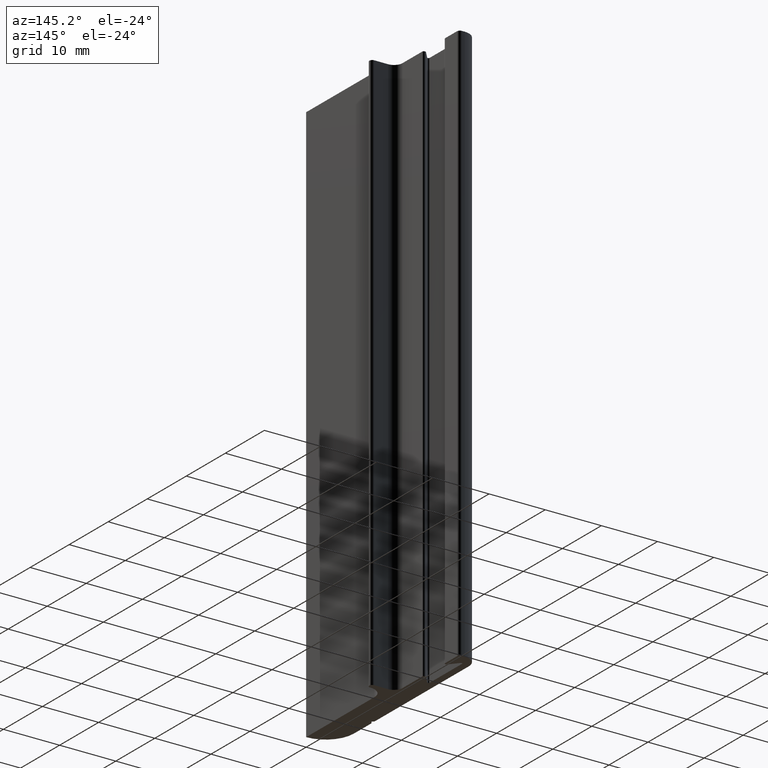
[diagram: clean part render]
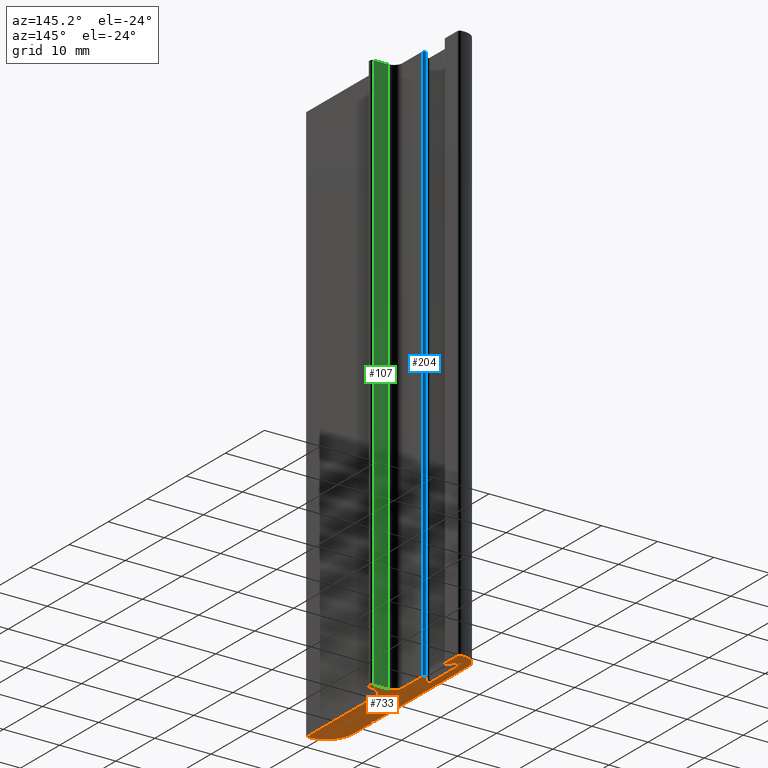
[diagram: same view with three faces highlighted in distinct colors, each labeled with its STEP entity id]
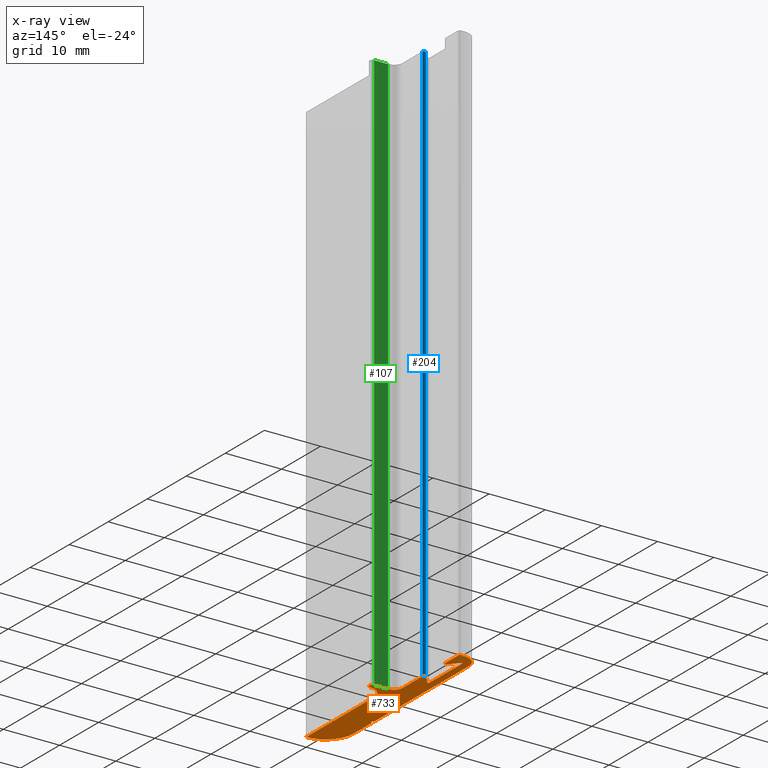
[diagram: x-ray of the same camera — body ghosted, the three highlighted faces saturated]
A machine part, auxiliary view with three faces highlighted in distinct colors.
The next image is the same camera in x-ray (body ghosted, the three faces saturated) — at least one of them is partly hidden behind the body in this view.
Their STEP definitions:

[orange] entity #733 — the highlighted planar face has unit normal (0, 0, 1).
#7=CARTESIAN_POINT('',(0.0,17.499999999998863,0.0));
#8=VERTEX_POINT('',#7);
#9=CARTESIAN_POINT('',(2.500000000000000,20.0,0.0));
#10=VERTEX_POINT('',#9);
#11=CARTESIAN_POINT('',(2.500000000000000,17.499999999998863,0.0));
#12=DIRECTION('',(0.0,0.0,-1.0));
#13=DIRECTION('',(1.0,0.0,0.0));
#14=AXIS2_PLACEMENT_3D('',#11,#12,#13);
#15=CIRCLE('',#14,2.500000000000000);
#16=EDGE_CURVE('',#8,#10,#15,.T.);
#49=CARTESIAN_POINT('',(2.500000000000000,20.999999999998863,0.0));
#50=VERTEX_POINT('',#49);
#51=CARTESIAN_POINT('',(2.500000000000000,20.500000000000000,0.0));
#52=DIRECTION('',(0.0,0.0,1.0));
#53=DIRECTION('',(1.0,0.0,0.0));
#54=AXIS2_PLACEMENT_3D('',#51,#52,#53);
#55=CIRCLE('',#54,0.500000000000012);
#56=EDGE_CURVE('',#10,#50,#55,.T.);
#82=CARTESIAN_POINT('',(0.0,20.999999999998863,0.0));
#83=VERTEX_POINT('',#82);
#84=CARTESIAN_POINT('',(2.500000000000000,20.999999999998863,0.0));
#85=DIRECTION('',(-1.0,0.0,0.0));
#86=VECTOR('',#85,2.500000000000000);
#87=LINE('',#84,#86);
#88=EDGE_CURVE('',#50,#83,#87,.T.);
#113=CARTESIAN_POINT('',(-1.500000000000000,22.499999999998863,0.0));
#114=VERTEX_POINT('',#113);
#115=CARTESIAN_POINT('',(0.0,22.499999999998863,0.0));
#116=DIRECTION('',(0.0,0.0,-1.0));
#117=DIRECTION('',(1.0,0.0,0.0));
#118=AXIS2_PLACEMENT_3D('',#115,#116,#117);
#119=CIRCLE('',#118,1.500000000000000);
#120=EDGE_CURVE('',#83,#114,#119,.T.);
#146=CARTESIAN_POINT('',(-1.500000000000000,27.570751159263864,0.0));
#147=VERTEX_POINT('',#146);
#148=CARTESIAN_POINT('',(-1.500000000000000,22.499999999998863,0.0));
#149=DIRECTION('',(0.0,1.0,0.0));
#150=VECTOR('',#149,5.070751159265001);
#151=LINE('',#148,#150);
#152=EDGE_CURVE('',#114,#147,#151,.T.);
#177=CARTESIAN_POINT('',(-2.029812803122354,27.763587249332886,0.0));
#178=VERTEX_POINT('',#177);
#179=CARTESIAN_POINT('',(-1.799999700000001,27.570751159263864,0.0));
#180=DIRECTION('',(0.0,0.0,1.0));
#181=DIRECTION('',(1.0,0.0,0.0));
#182=AXIS2_PLACEMENT_3D('',#179,#180,#181);
#183=CIRCLE('',#182,0.299999700000000);
#184=EDGE_CURVE('',#147,#178,#183,.T.);
#210=CARTESIAN_POINT('',(-3.320530720561976,26.225369534198308,0.0));
#211=VERTEX_POINT('',#210);
#212=CARTESIAN_POINT('',(-2.029812803122354,27.763587249332886,0.0));
#213=DIRECTION('',(-0.642787609686693,-0.766044443118849,0.0));
#214=VECTOR('',#213,2.008000617916169);
#215=LINE('',#212,#214);
#216=EDGE_CURVE('',#178,#211,#215,.T.);
#241=CARTESIAN_POINT('',(-3.673739255976955,26.353926927577959,0.0));
#242=VERTEX_POINT('',#241);
#243=CARTESIAN_POINT('',(-3.473739455976954,26.353926927577959,0.0));
#244=DIRECTION('',(0.0,0.0,-1.0));
#245=DIRECTION('',(1.0,0.0,0.0));
#246=AXIS2_PLACEMENT_3D('',#243,#244,#245);
#247=CIRCLE('',#246,0.199999800000000);
#248=EDGE_CURVE('',#211,#242,#247,.T.);
#274=CARTESIAN_POINT('',(-3.673739255976955,34.646086072419848,0.0));
#275=VERTEX_POINT('',#274);
#276=CARTESIAN_POINT('',(-3.673739255976955,26.353926927577959,0.0));
#277=DIRECTION('',(0.0,1.0,0.0));
#278=VECTOR('',#277,8.292159144841889);
#279=LINE('',#276,#278);
#280=EDGE_CURVE('',#242,#275,#279,.T.);
#305=CARTESIAN_POINT('',(-3.320530720562090,34.774643465799954,0.0));
#306=VERTEX_POINT('',#305);
#307=CARTESIAN_POINT('',(-3.473739455976954,34.646086072419848,0.0));
#308=DIRECTION('',(0.0,0.0,-1.0));
#309=DIRECTION('',(1.0,0.0,0.0));
#310=AXIS2_PLACEMENT_3D('',#307,#308,#309);
#311=CIRCLE('',#310,0.199999800000000);
#312=EDGE_CURVE('',#275,#306,#311,.T.);
#338=CARTESIAN_POINT('',(-2.029812803122468,33.236425750665376,0.0));
#339=VERTEX_POINT('',#338);
#340=CARTESIAN_POINT('',(-3.320530720562090,34.774643465799954,0.0));
#341=DIRECTION('',(0.642787609686414,-0.766044443119083,0.0));
#342=VECTOR('',#341,2.008000617917039);
#343=LINE('',#340,#342);
#344=EDGE_CURVE('',#306,#339,#343,.T.);
#369=CARTESIAN_POINT('',(-1.500000000000000,33.429261840734853,0.0));
#370=VERTEX_POINT('',#369);
#371=CARTESIAN_POINT('',(-1.799999700000001,33.429261840734853,0.0));
#372=DIRECTION('',(0.0,0.0,1.0));
#373=DIRECTION('',(1.0,0.0,0.0));
#374=AXIS2_PLACEMENT_3D('',#371,#372,#373);
#375=CIRCLE('',#374,0.299999700000000);
#376=EDGE_CURVE('',#339,#370,#375,.T.);
#402=CARTESIAN_POINT('',(-1.500000000000000,36.500000499999032,0.0));
#403=VERTEX_POINT('',#402);
#404=CARTESIAN_POINT('',(-1.500000000000000,33.429261840734853,0.0));
#405=DIRECTION('',(0.0,1.0,0.0));
#406=VECTOR('',#405,3.070738659264180);
#407=LINE('',#404,#406);
#408=EDGE_CURVE('',#370,#403,#407,.T.);
#433=CARTESIAN_POINT('',(-1.999999500000001,36.999999999998863,0.0));
#434=VERTEX_POINT('',#433);
#435=CARTESIAN_POINT('',(-1.999999500000001,36.500000499999032,0.0));
#436=DIRECTION('',(0.0,0.0,1.0));
#437=DIRECTION('',(1.0,0.0,0.0));
#438=AXIS2_PLACEMENT_3D('',#435,#436,#437);
#439=CIRCLE('',#438,0.499999500000000);
#440=EDGE_CURVE('',#403,#434,#439,.T.);
#466=CARTESIAN_POINT('',(-2.499998999999946,36.999999999999091,0.0));
#467=VERTEX_POINT('',#466);
#468=CARTESIAN_POINT('',(-1.999999500000001,36.999999999998863,0.0));
#469=DIRECTION('',(-1.0,0.0,0.0));
#470=VECTOR('',#469,0.499999499999944);
#471=LINE('',#468,#470);
#472=EDGE_CURVE('',#434,#467,#471,.T.);
#497=CARTESIAN_POINT('',(-4.999996499999952,34.500002499999027,0.0));
#498=VERTEX_POINT('',#497);
#499=CARTESIAN_POINT('',(-2.499998999999946,34.500002499999027,0.0));
#500=DIRECTION('',(0.0,0.0,1.0));
#501=DIRECTION('',(1.0,0.0,0.0));
#502=AXIS2_PLACEMENT_3D('',#499,#500,#501);
#503=CIRCLE('',#502,2.499997500000000);
#504=EDGE_CURVE('',#467,#498,#503,.T.);
#530=CARTESIAN_POINT('',(-4.999996499999952,10.353553390592879,0.0));
#531=VERTEX_POINT('',#530);
#532=CARTESIAN_POINT('',(-4.999996499999952,34.500002499999027,0.0));
#533=DIRECTION('',(0.0,-1.0,0.0));
#534=VECTOR('',#533,24.146449109406149);
#535=LINE('',#532,#534);
#536=EDGE_CURVE('',#498,#531,#535,.T.);
#561=CARTESIAN_POINT('',(-4.646443109406789,9.999999999998863,0.0));
#562=VERTEX_POINT('',#561);
#563=CARTESIAN_POINT('',(-4.999996499999952,10.353553390592879,0.0));
#564=DIRECTION('',(0.707106781185695,-0.707106781187400,0.0));
#565=VECTOR('',#564,0.500000000000446);
#566=LINE('',#563,#565);
#567=EDGE_CURVE('',#531,#562,#566,.T.);
#592=CARTESIAN_POINT('',(-4.999996499999952,9.558156932469046,0.0));
#593=VERTEX_POINT('',#592);
#594=CARTESIAN_POINT('',(-4.646443109406789,9.999999999998863,0.0));
#595=DIRECTION('',(-0.624780100167035,-0.780800759755823,0.0));
#596=VECTOR('',#595,0.565884525609315);
#597=LINE('',#594,#596);
#598=EDGE_CURVE('',#562,#593,#597,.T.);
#623=CARTESIAN_POINT('',(-4.999996499999952,4.999999999998863,0.0));
#624=VERTEX_POINT('',#623);
#625=CARTESIAN_POINT('',(-4.999996499999952,9.558156932469046,0.0));
#626=DIRECTION('',(0.0,-1.0,0.0));
#627=VECTOR('',#626,4.558156932470183);
#628=LINE('',#625,#627);
#629=EDGE_CURVE('',#593,#624,#628,.T.);
#654=CARTESIAN_POINT('',(0.0,0.0,0.0));
#655=VERTEX_POINT('',#654);
#656=CARTESIAN_POINT('',(0.000003500000048,4.999999999998863,0.0));
#657=DIRECTION('',(0.0,0.0,1.0));
#658=DIRECTION('',(-1.0,0.0,0.0));
#659=AXIS2_PLACEMENT_3D('',#656,#657,#658);
#660=CIRCLE('',#659,5.0);
#661=EDGE_CURVE('',#624,#655,#660,.T.);
#687=CARTESIAN_POINT('',(0.0,0.0,0.0));
#688=DIRECTION('',(0.0,1.0,0.0));
#689=VECTOR('',#688,17.499999999998863);
#690=LINE('',#687,#689);
#691=EDGE_CURVE('',#655,#8,#690,.T.);
#704=CARTESIAN_POINT('',(-5.800116153840349,-3.700120003754819,0.0));
#705=DIRECTION('',(0.0,0.0,1.0));
#706=DIRECTION('',(1.0,0.0,0.0));
#707=AXIS2_PLACEMENT_3D('',#704,#705,#706);
#708=PLANE('',#707);
#709=ORIENTED_EDGE('',*,*,#691,.F.);
#710=ORIENTED_EDGE('',*,*,#661,.F.);
#711=ORIENTED_EDGE('',*,*,#629,.F.);
#712=ORIENTED_EDGE('',*,*,#598,.F.);
#713=ORIENTED_EDGE('',*,*,#567,.F.);
#714=ORIENTED_EDGE('',*,*,#536,.F.);
#715=ORIENTED_EDGE('',*,*,#504,.F.);
#716=ORIENTED_EDGE('',*,*,#472,.F.);
#717=ORIENTED_EDGE('',*,*,#440,.F.);
#718=ORIENTED_EDGE('',*,*,#408,.F.);
#719=ORIENTED_EDGE('',*,*,#376,.F.);
#720=ORIENTED_EDGE('',*,*,#344,.F.);
#721=ORIENTED_EDGE('',*,*,#312,.F.);
#722=ORIENTED_EDGE('',*,*,#280,.F.);
#723=ORIENTED_EDGE('',*,*,#248,.F.);
#724=ORIENTED_EDGE('',*,*,#216,.F.);
#725=ORIENTED_EDGE('',*,*,#184,.F.);
#726=ORIENTED_EDGE('',*,*,#152,.F.);
#727=ORIENTED_EDGE('',*,*,#120,.F.);
#728=ORIENTED_EDGE('',*,*,#88,.F.);
#729=ORIENTED_EDGE('',*,*,#56,.F.);
#730=ORIENTED_EDGE('',*,*,#16,.F.);
#731=EDGE_LOOP('',(#709,#710,#711,#712,#713,#714,#715,#716,#717,#718,#719,#720,#721,#722,#723,#724,#725,#726,#727,#728,#729,#730));
#732=FACE_OUTER_BOUND('',#731,.T.);
#733=ADVANCED_FACE('',(#732),#708,.F.);

[blue] entity #204 — the highlighted cylindrical surface (edge-blend (fillet) strip) has radius 0.3 mm, axis along (0, 0, 1).
#146=CARTESIAN_POINT('',(-1.500000000000000,27.570751159263864,0.0));
#147=VERTEX_POINT('',#146);
#154=CARTESIAN_POINT('',(-1.500000000000000,27.570751159263864,100.0));
#155=VERTEX_POINT('',#154);
#156=CARTESIAN_POINT('',(-1.500000000000000,27.570751159263864,0.0));
#157=DIRECTION('',(0.0,0.0,1.0));
#158=VECTOR('',#157,100.0);
#159=LINE('',#156,#158);
#160=EDGE_CURVE('',#147,#155,#159,.T.);
#172=CARTESIAN_POINT('',(-1.799999700000001,27.570751159263864,0.0));
#173=DIRECTION('',(0.0,0.0,1.0));
#174=DIRECTION('',(1.0,0.0,0.0));
#175=AXIS2_PLACEMENT_3D('',#172,#173,#174);
#176=CYLINDRICAL_SURFACE('',#175,0.299999700000000);
#177=CARTESIAN_POINT('',(-2.029812803122354,27.763587249332886,0.0));
#178=VERTEX_POINT('',#177);
#179=CARTESIAN_POINT('',(-1.799999700000001,27.570751159263864,0.0));
#180=DIRECTION('',(0.0,0.0,1.0));
#181=DIRECTION('',(1.0,0.0,0.0));
#182=AXIS2_PLACEMENT_3D('',#179,#180,#181);
#183=CIRCLE('',#182,0.299999700000000);
#184=EDGE_CURVE('',#147,#178,#183,.T.);
#185=ORIENTED_EDGE('',*,*,#184,.T.);
#186=CARTESIAN_POINT('',(-2.029812803122354,27.763587249332886,100.0));
#187=VERTEX_POINT('',#186);
#188=CARTESIAN_POINT('',(-2.029812803122354,27.763587249332886,0.0));
#189=DIRECTION('',(0.0,0.0,1.0));
#190=VECTOR('',#189,100.0);
#191=LINE('',#188,#190);
#192=EDGE_CURVE('',#178,#187,#191,.T.);
#193=ORIENTED_EDGE('',*,*,#192,.T.);
#194=CARTESIAN_POINT('',(-1.799999700000001,27.570751159263864,100.0));
#195=DIRECTION('',(0.0,0.0,1.0));
#196=DIRECTION('',(1.0,0.0,0.0));
#197=AXIS2_PLACEMENT_3D('',#194,#195,#196);
#198=CIRCLE('',#197,0.299999700000000);
#199=EDGE_CURVE('',#155,#187,#198,.T.);
#200=ORIENTED_EDGE('',*,*,#199,.F.);
#201=ORIENTED_EDGE('',*,*,#160,.F.);
#202=EDGE_LOOP('',(#185,#193,#200,#201));
#203=FACE_OUTER_BOUND('',#202,.T.);
#204=ADVANCED_FACE('',(#203),#176,.T.);

[green] entity #107 — the highlighted planar face has unit normal (0, 1, 0).
#49=CARTESIAN_POINT('',(2.500000000000000,20.999999999998863,0.0));
#50=VERTEX_POINT('',#49);
#58=CARTESIAN_POINT('',(2.500000000000000,20.999999999998863,100.0));
#59=VERTEX_POINT('',#58);
#60=CARTESIAN_POINT('',(2.500000000000000,20.999999999998863,0.0));
#61=DIRECTION('',(0.0,0.0,1.0));
#62=VECTOR('',#61,100.0);
#63=LINE('',#60,#62);
#64=EDGE_CURVE('',#50,#59,#63,.T.);
#77=CARTESIAN_POINT('',(2.500000000000000,20.999999999998863,0.0));
#78=DIRECTION('',(0.0,1.0,0.0));
#79=DIRECTION('',(-1.0,0.0,0.0));
#80=AXIS2_PLACEMENT_3D('',#77,#78,#79);
#81=PLANE('',#80);
#82=CARTESIAN_POINT('',(0.0,20.999999999998863,0.0));
#83=VERTEX_POINT('',#82);
#84=CARTESIAN_POINT('',(2.500000000000000,20.999999999998863,0.0));
#85=DIRECTION('',(-1.0,0.0,0.0));
#86=VECTOR('',#85,2.500000000000000);
#87=LINE('',#84,#86);
#88=EDGE_CURVE('',#50,#83,#87,.T.);
#89=ORIENTED_EDGE('',*,*,#88,.T.);
#90=CARTESIAN_POINT('',(0.0,20.999999999998863,100.0));
#91=VERTEX_POINT('',#90);
#92=CARTESIAN_POINT('',(0.0,20.999999999998863,0.0));
#93=DIRECTION('',(0.0,0.0,1.0));
#94=VECTOR('',#93,100.0);
#95=LINE('',#92,#94);
#96=EDGE_CURVE('',#83,#91,#95,.T.);
#97=ORIENTED_EDGE('',*,*,#96,.T.);
#98=CARTESIAN_POINT('',(2.500000000000000,20.999999999998863,100.0));
#99=DIRECTION('',(-1.0,0.0,0.0));
#100=VECTOR('',#99,2.500000000000000);
#101=LINE('',#98,#100);
#102=EDGE_CURVE('',#59,#91,#101,.T.);
#103=ORIENTED_EDGE('',*,*,#102,.F.);
#104=ORIENTED_EDGE('',*,*,#64,.F.);
#105=EDGE_LOOP('',(#89,#97,#103,#104));
#106=FACE_OUTER_BOUND('',#105,.T.);
#107=ADVANCED_FACE('',(#106),#81,.T.);